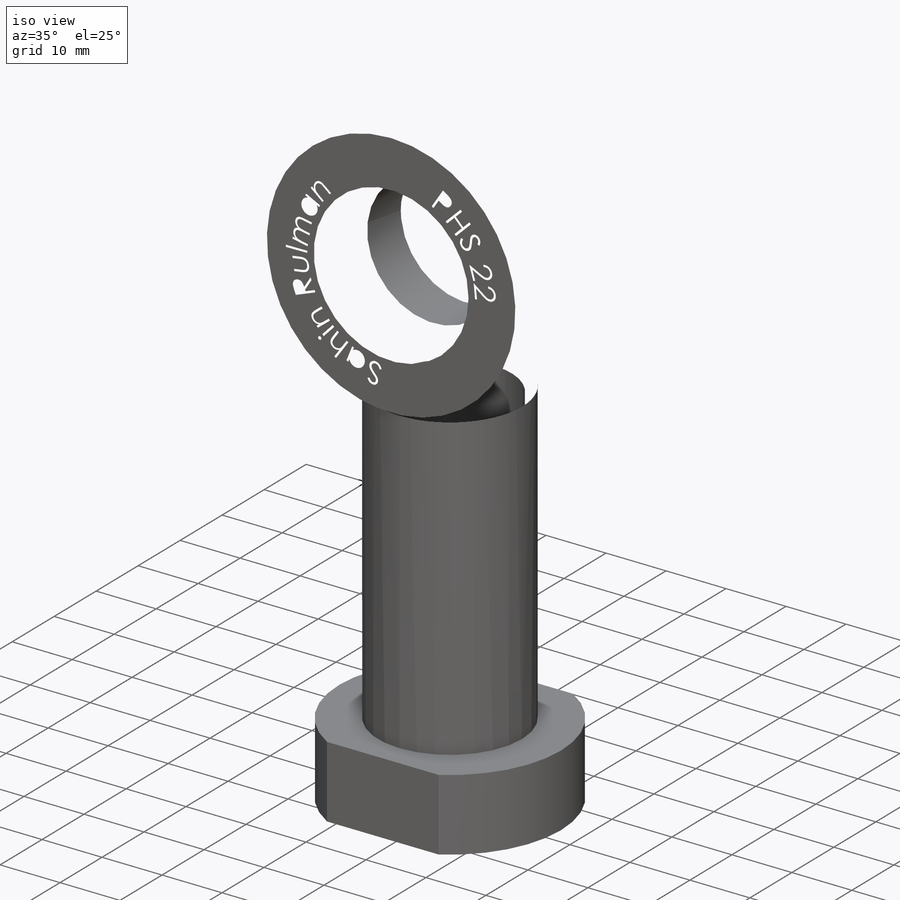
[diagram: iso view]
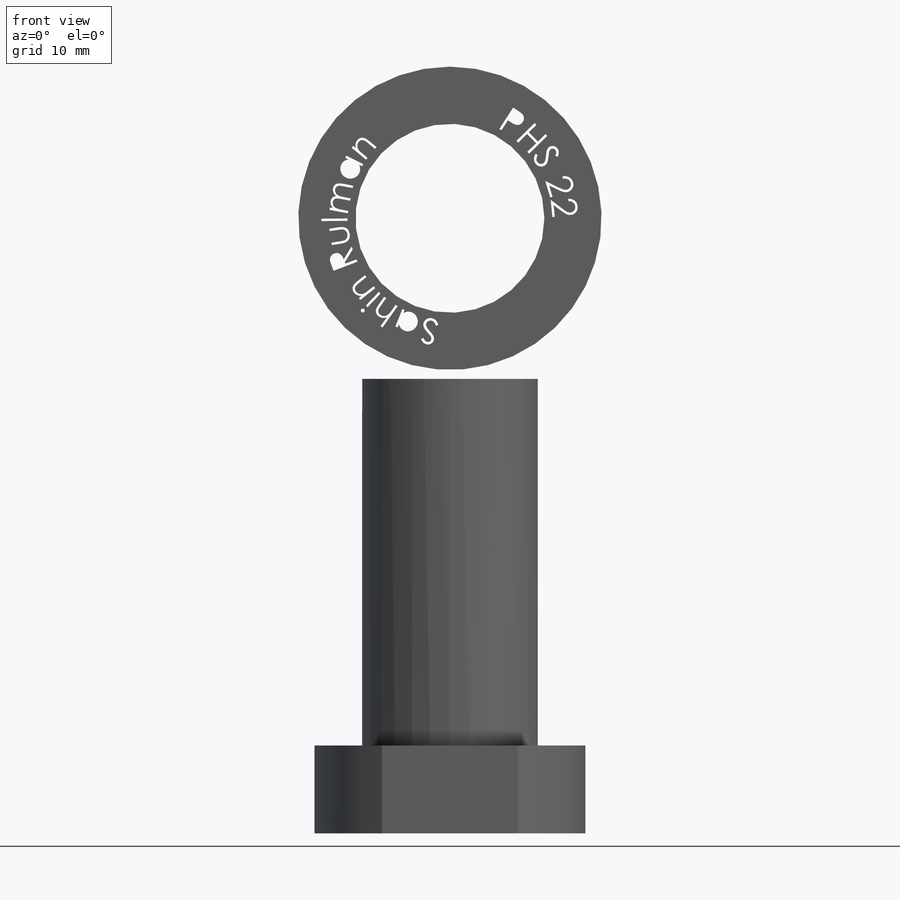
[diagram: front view]
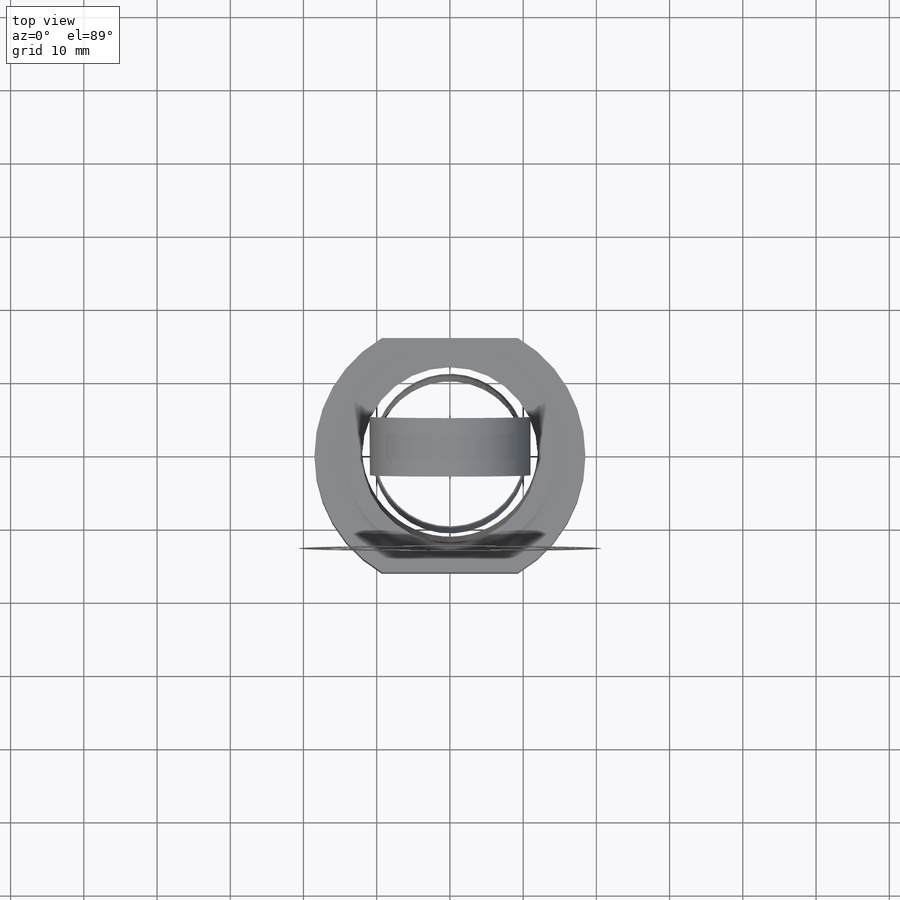
[diagram: top view]
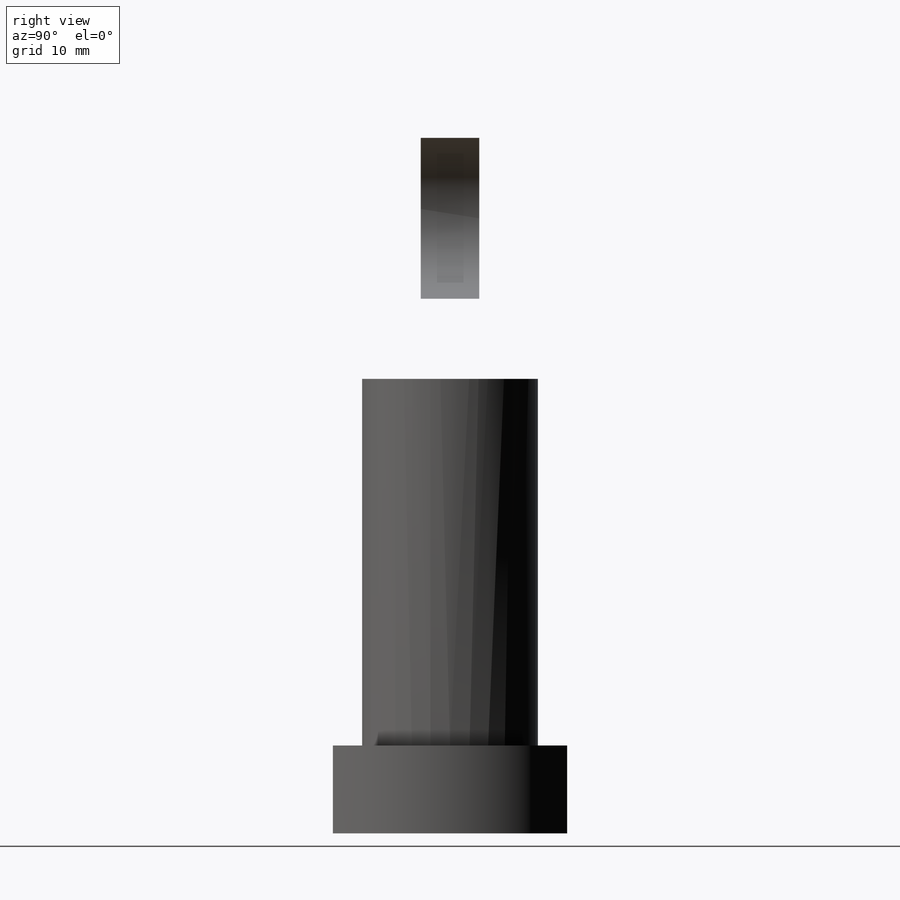
[diagram: right view]
SOLIDWORKS PART (.sldprt)
format: sldprt  version: not decoded by parser v0  size: 1,199,104 bytes
history: native  units: mm
features: sketch x12, cut_extrude x6, extrude x2, material x1, fillet x1, helix x1, plane x1, sweep x1, revolve x1, mirror x1 (+11 scaffold rows collapsed)
feature tree (38):
  scaffold x11  (default folders/planes/origin — collapsed)
  material  "Material <not specified>"
  sketch  "Sketch1"  dims[D1=37.0mm]
  extrude  "Boss-Extrude1"  Depth=12mm
  sketch  "Sketch2"  dims[D1=32.0mm D2=16.0mm]
  cut_extrude  "Cut-Extrude1"  Depth=32mm
  sketch  "Sketch3"  dims[D1=24.0mm]
  extrude  "Boss-Extrude2"  Depth=72mm
  sketch  "Sketch4"  dims[D1=20.5mm]
  cut_extrude  "Cut-Extrude2"  Depth=72mm
  fillet  "Fillet1"  Radius=1.5mm
  sketch  "Sketch5"
  helix  "Helix/Spiral1"  Pitch=43mm
  plane  "Plane1"
  sketch  "Sketch6"  dims[D1=0.75mm]
  sweep  "Cut-Sweep1"
  sketch  "Sketch7"  dims[D1=50.0mm]
  revolve  "Revolve1"  Angle=360deg
  sketch  "Sketch8"  dims[D1=28.0mm D2=14.0mm]
  cut_extrude  "Cut-Extrude3"  Depth=72mm
  sketch  "Sketch9"  dims[D1=22.0mm]
  cut_extrude  "Cut-Extrude4"  Depth=72mm
  sketch  "Sketch10"  dims[D1=25.8mm]
  cut_extrude  "Cut-Extrude5"  Depth=10mm
  mirror  "Mirror1"
  sketch  "Sketch11"  dims[D1=28.0mm]
  sketch  "Sketch12"
  cut_extrude  "Cut-Extrude6"  Depth=1mm
decode coverage: 21 of 25 modeling features carry decoded parameters
note: suppression state not decoded; provenance and decode notes live in map.json
